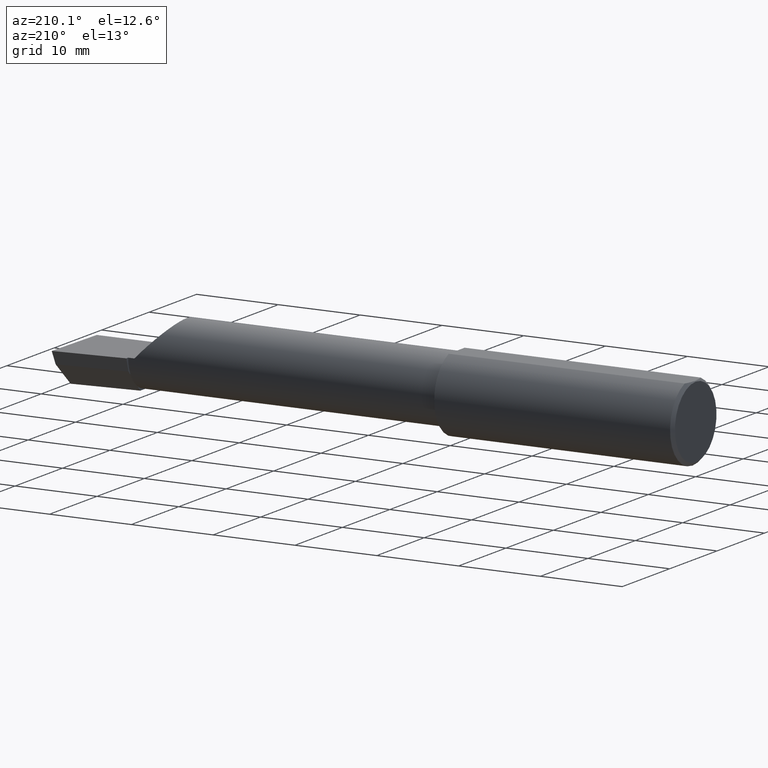
[diagram: clean part render]
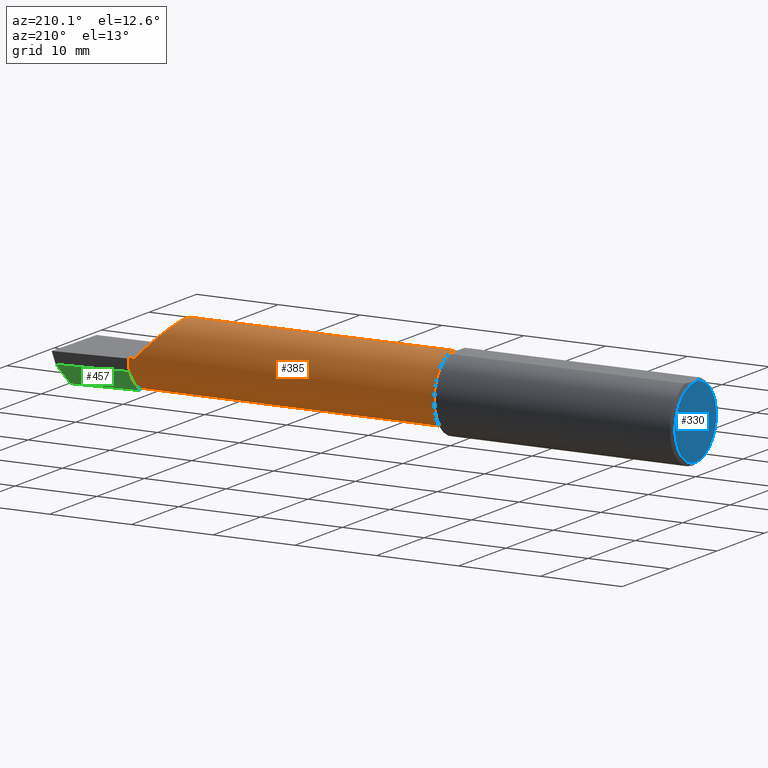
[diagram: same view with three faces highlighted in distinct colors, each labeled with its STEP entity id]
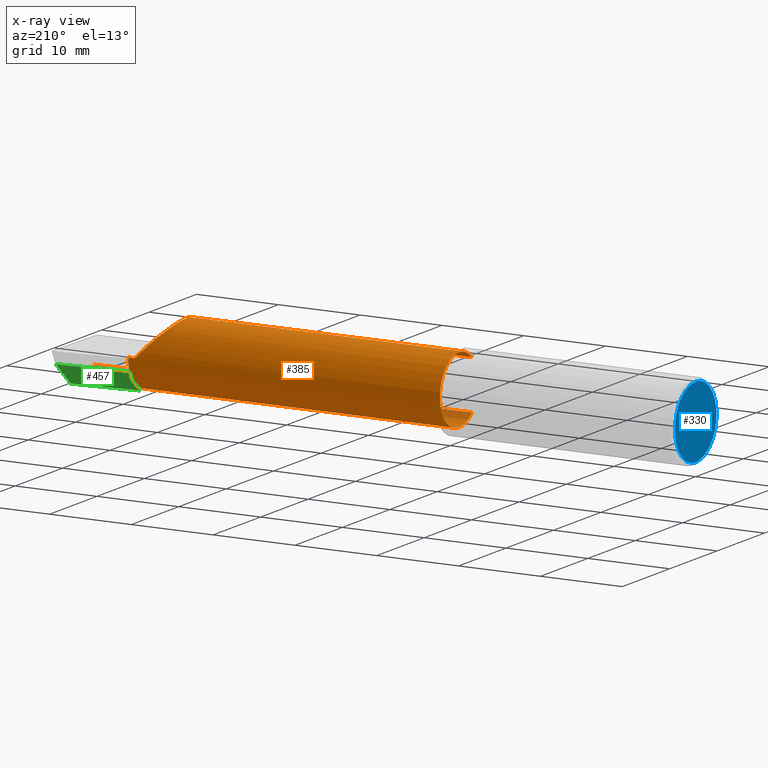
[diagram: x-ray of the same camera — body ghosted, the three highlighted faces saturated]
A machine part, auxiliary view with three faces highlighted in distinct colors.
The next image is the same camera in x-ray (body ghosted, the three faces saturated) — at least one of them is partly hidden behind the body in this view.
Their STEP definitions:

[orange] entity #385 — the highlighted cylindrical surface (partial cylindrical patch) has radius 4.0653 mm, axis along (-1, 0, -0).
#1 = CARTESIAN_POINT ( 'NONE',  ( 2.973833329693936545, -0.07789060880782658347, -0.1600499999999999146 ) ) ;
#2 = CIRCLE ( 'NONE', #478, 0.1600499999999999146 ) ;
#10 = CIRCLE ( 'NONE', #109, 0.1600500000000000533 ) ;
#14 = ORIENTED_EDGE ( 'NONE', *, *, #364, .F. ) ;
#20 = VECTOR ( 'NONE', #51, 39.37007874015748143 ) ;
#40 = CARTESIAN_POINT ( 'NONE',  ( 1.160000000000000142, -0.03739999999999999575, 0.000000000000000000 ) ) ;
#45 = ORIENTED_EDGE ( 'NONE', *, *, #56, .T. ) ;
#49 = ORIENTED_EDGE ( 'NONE', *, *, #199, .T. ) ;
#51 = DIRECTION ( 'NONE',  ( -1.000000000000000000, 5.691349986800548372E-18, -0.000000000000000000 ) ) ;
#56 = EDGE_CURVE ( 'NONE', #550, #360, #102, .T. ) ;
#62 = DIRECTION ( 'NONE',  ( -1.000000000000000000, 5.691349986800549142E-18, -0.000000000000000000 ) ) ;
#64 = AXIS2_PLACEMENT_3D ( 'NONE', #107, #62, #104 ) ;
#70 = CARTESIAN_POINT ( 'NONE',  ( 2.629999999999999893, 0.1226499999999998147, -1.592040838891560883E-17 ) ) ;
#78 = CARTESIAN_POINT ( 'NONE',  ( 2.659999999999999698, -0.03740000000000000269, 0.000000000000000000 ) ) ;
#84 = VERTEX_POINT ( 'NONE', #603 ) ;
#86 = LINE ( 'NONE', #552, #207 ) ;
#97 = LINE ( 'NONE', #289, #20 ) ;
#98 = VECTOR ( 'NONE', #414, 39.37007874015748143 ) ;
#99 = AXIS2_PLACEMENT_3D ( 'NONE', #40, #471, #192 ) ;
#102 =( BOUNDED_CURVE ( )  B_SPLINE_CURVE ( 3, ( #242, #119, #501, #70 ),
 .UNSPECIFIED., .F., .T. ) 
 B_SPLINE_CURVE_WITH_KNOTS ( ( 4, 4 ),
 ( 5.541729662751385455, 7.853981633974482790 ),
 .UNSPECIFIED. ) 
 CURVE ( )  GEOMETRIC_REPRESENTATION_ITEM ( )  RATIONAL_B_SPLINE_CURVE ( ( 1.000000000000000000, 0.6019254882129718709, 0.6019254882129718709, 1.000000000000000000 ) ) 
 REPRESENTATION_ITEM ( '' )  );
#104 = DIRECTION ( 'NONE',  ( -5.691349986800548372E-18, -1.000000000000000000, 0.000000000000000000 ) ) ;
#107 = CARTESIAN_POINT ( 'NONE',  ( 0.000000000000000000, -0.03739999999999998881, 0.000000000000000000 ) ) ;
#109 = AXIS2_PLACEMENT_3D ( 'NONE', #562, #464, #402 ) ;
#119 = CARTESIAN_POINT ( 'NONE',  ( 2.402393788885675008, -0.02584108761840274437, 0.2276062111143224709 ) ) ;
#126 =( BOUNDED_CURVE ( )  B_SPLINE_CURVE ( 3, ( #577, #372, #1, #332 ),
 .UNSPECIFIED., .F., .F. ) 
 B_SPLINE_CURVE_WITH_KNOTS ( ( 4, 4 ),
 ( 5.751779107031520510, 6.493234751459723064 ),
 .UNSPECIFIED. ) 
 CURVE ( )  GEOMETRIC_REPRESENTATION_ITEM ( )  RATIONAL_B_SPLINE_CURVE ( ( 1.000000000000000000, 0.9547092712975350226, 0.9547092712975350226, 1.000000000000000000 ) ) 
 REPRESENTATION_ITEM ( '' )  );
#135 = CARTESIAN_POINT ( 'NONE',  ( 2.977223734188810145, -0.1454917112299468074, -0.1180346748349050540 ) ) ;
#139 = EDGE_CURVE ( 'NONE', #425, #550, #86, .T. ) ;
#161 = VERTEX_POINT ( 'NONE', #171 ) ;
#166 = CARTESIAN_POINT ( 'NONE',  ( 1.160000000000000142, -0.1454917112299473902, 0.1180346748349042768 ) ) ;
#171 = CARTESIAN_POINT ( 'NONE',  ( 2.659999999999999698, -0.03740000000000000269, -0.1600499999999999701 ) ) ;
#192 = DIRECTION ( 'NONE',  ( 0.000000000000000000, -1.000000000000000000, 0.000000000000000000 ) ) ;
#199 = EDGE_CURVE ( 'NONE', #486, #161, #518, .T. ) ;
#207 = VECTOR ( 'NONE', #224, 39.37007874015748143 ) ;
#219 = ORIENTED_EDGE ( 'NONE', *, *, #139, .T. ) ;
#221 = DIRECTION ( 'NONE',  ( 0.000000000000000000, -1.000000000000000000, 0.000000000000000000 ) ) ;
#224 = DIRECTION ( 'NONE',  ( 1.000000000000000000, -5.691349986800549142E-18, 0.000000000000000000 ) ) ;
#225 = EDGE_CURVE ( 'NONE', #541, #594, #126, .T. ) ;
#234 = EDGE_CURVE ( 'NONE', #360, #383, #473, .T. ) ;
#242 = CARTESIAN_POINT ( 'NONE',  ( 2.511965325165093521, -0.1454917112299465853, 0.1180346748349052760 ) ) ;
#249 = ORIENTED_EDGE ( 'NONE', *, *, #538, .T. ) ;
#250 = CARTESIAN_POINT ( 'NONE',  ( 2.659999999999999698, 0.1226500000000000368, 3.563723795045366070E-16 ) ) ;
#254 = VECTOR ( 'NONE', #426, 39.37007874015748143 ) ;
#262 = ORIENTED_EDGE ( 'NONE', *, *, #347, .F. ) ;
#263 = CARTESIAN_POINT ( 'NONE',  ( 1.909999999999999920, -0.1454917112299468074, -0.1180346748349050540 ) ) ;
#268 = DIRECTION ( 'NONE',  ( -1.000000000000000000, 5.691349986800549142E-18, -0.000000000000000000 ) ) ;
#270 = EDGE_CURVE ( 'NONE', #425, #84, #400, .T. ) ;
#272 = LINE ( 'NONE', #263, #98 ) ;
#289 = CARTESIAN_POINT ( 'NONE',  ( 3.000000000000000444, -0.03740000000000000269, -0.1600499999999999701 ) ) ;
#293 = CARTESIAN_POINT ( 'NONE',  ( 2.629999999999999893, 0.1226499999999998147, -1.592040838891560883E-17 ) ) ;
#295 = FACE_OUTER_BOUND ( 'NONE', #316, .T. ) ;
#303 = ORIENTED_EDGE ( 'NONE', *, *, #234, .T. ) ;
#310 = CARTESIAN_POINT ( 'NONE',  ( 2.511965325165093521, -0.1454917112299465853, 0.1180346748349052760 ) ) ;
#316 = EDGE_LOOP ( 'NONE', ( #507, #249, #455, #219, #45, #303, #343, #14, #49, #262 ) ) ;
#332 = CARTESIAN_POINT ( 'NONE',  ( 2.974893613600466669, -0.03740000000000000269, -0.1600499999999999701 ) ) ;
#343 = ORIENTED_EDGE ( 'NONE', *, *, #614, .T. ) ;
#347 = EDGE_CURVE ( 'NONE', #594, #161, #97, .T. ) ;
#354 = CARTESIAN_POINT ( 'NONE',  ( 2.974893613600466669, -0.03740000000000000269, -0.1600499999999999701 ) ) ;
#360 = VERTEX_POINT ( 'NONE', #293 ) ;
#364 = EDGE_CURVE ( 'NONE', #486, #463, #2, .T. ) ;
#372 = CARTESIAN_POINT ( 'NONE',  ( 2.974646882977781015, -0.1156304438478839430, -0.1453804992321580114 ) ) ;
#381 = AXIS2_PLACEMENT_3D ( 'NONE', #78, #268, #221 ) ;
#383 = VERTEX_POINT ( 'NONE', #250 ) ;
#385 = ADVANCED_FACE ( 'NONE', ( #295 ), #490, .T. ) ;
#400 = CIRCLE ( 'NONE', #99, 0.1600499999999997758 ) ;
#402 = DIRECTION ( 'NONE',  ( 0.000000000000000000, -1.000000000000000000, 0.000000000000000000 ) ) ;
#414 = DIRECTION ( 'NONE',  ( -1.000000000000000000, 5.691349986800549142E-18, -0.000000000000000000 ) ) ;
#425 = VERTEX_POINT ( 'NONE', #166 ) ;
#426 = DIRECTION ( 'NONE',  ( 1.000000000000000000, -5.691349986800549142E-18, 0.000000000000000000 ) ) ;
#444 = CARTESIAN_POINT ( 'NONE',  ( 2.659999999999999698, 0.1028057716897400331, -0.07719031082256673504 ) ) ;
#455 = ORIENTED_EDGE ( 'NONE', *, *, #270, .F. ) ;
#463 = VERTEX_POINT ( 'NONE', #444 ) ;
#464 = DIRECTION ( 'NONE',  ( -1.000000000000000000, 5.691349986800549142E-18, -0.000000000000000000 ) ) ;
#471 = DIRECTION ( 'NONE',  ( -1.000000000000000000, 5.691349986800549142E-18, -0.000000000000000000 ) ) ;
#473 = LINE ( 'NONE', #620, #254 ) ;
#478 = AXIS2_PLACEMENT_3D ( 'NONE', #589, #493, #496 ) ;
#486 = VERTEX_POINT ( 'NONE', #487 ) ;
#487 = CARTESIAN_POINT ( 'NONE',  ( 2.659999999999999698, 0.04400172171466199683, -0.1378033461200732224 ) ) ;
#490 = CYLINDRICAL_SURFACE ( 'NONE', #64, 0.1600499999999999146 ) ;
#493 = DIRECTION ( 'NONE',  ( 1.000000000000000000, -5.691349986800549142E-18, 0.000000000000000000 ) ) ;
#496 = DIRECTION ( 'NONE',  ( 0.000000000000000000, -1.000000000000000000, -1.776356839400250465E-15 ) ) ;
#501 = CARTESIAN_POINT ( 'NONE',  ( 2.467758842172327771, 0.1226499999999999119, 0.1622411578276702349 ) ) ;
#507 = ORIENTED_EDGE ( 'NONE', *, *, #225, .F. ) ;
#518 = CIRCLE ( 'NONE', #381, 0.1600500000000000533 ) ;
#538 = EDGE_CURVE ( 'NONE', #541, #84, #272, .T. ) ;
#541 = VERTEX_POINT ( 'NONE', #135 ) ;
#550 = VERTEX_POINT ( 'NONE', #310 ) ;
#552 = CARTESIAN_POINT ( 'NONE',  ( 1.909999999999999920, -0.1454917112299468074, 0.1180346748349050540 ) ) ;
#562 = CARTESIAN_POINT ( 'NONE',  ( 2.659999999999999698, -0.03740000000000000269, 0.000000000000000000 ) ) ;
#577 = CARTESIAN_POINT ( 'NONE',  ( 2.977223734188810145, -0.1454917112299468074, -0.1180346748349050540 ) ) ;
#589 = CARTESIAN_POINT ( 'NONE',  ( 2.659999999999999698, -0.03740000000000000269, 0.000000000000000000 ) ) ;
#594 = VERTEX_POINT ( 'NONE', #354 ) ;
#603 = CARTESIAN_POINT ( 'NONE',  ( 1.160000000000000142, -0.1454917112299473902, -0.1180346748349042768 ) ) ;
#614 = EDGE_CURVE ( 'NONE', #383, #463, #10, .T. ) ;
#620 = CARTESIAN_POINT ( 'NONE',  ( 9.109005653874777379E-19, 0.1226499999999998841, 3.563723795045361633E-16 ) ) ;

[blue] entity #330 — the highlighted planar face has unit normal (1, 0, 0).
#28 = ORIENTED_EDGE ( 'NONE', *, *, #525, .T. ) ;
#35 = AXIS2_PLACEMENT_3D ( 'NONE', #396, #112, #298 ) ;
#75 = CIRCLE ( 'NONE', #423, 0.1723499999999996424 ) ;
#112 = DIRECTION ( 'NONE',  ( -1.000000000000000000, -0.000000000000000000, -0.000000000000000000 ) ) ;
#129 = ORIENTED_EDGE ( 'NONE', *, *, #403, .T. ) ;
#149 = FACE_OUTER_BOUND ( 'NONE', #544, .T. ) ;
#153 = AXIS2_PLACEMENT_3D ( 'NONE', #429, #335, #528 ) ;
#257 = CARTESIAN_POINT ( 'NONE',  ( 0.000000000000000000, 0.000000000000000000, -0.1723499999999996424 ) ) ;
#298 = DIRECTION ( 'NONE',  ( 0.000000000000000000, 0.000000000000000000, 1.000000000000000000 ) ) ;
#307 = CARTESIAN_POINT ( 'NONE',  ( 0.000000000000000000, 0.000000000000000000, 0.000000000000000000 ) ) ;
#330 = ADVANCED_FACE ( 'NONE', ( #149 ), #422, .F. ) ;
#335 = DIRECTION ( 'NONE',  ( 1.000000000000000000, 0.000000000000000000, 0.000000000000000000 ) ) ;
#358 = DIRECTION ( 'NONE',  ( -1.000000000000000000, -0.000000000000000000, -0.000000000000000000 ) ) ;
#396 = CARTESIAN_POINT ( 'NONE',  ( 0.000000000000000000, 0.000000000000000000, 0.000000000000000000 ) ) ;
#403 = EDGE_CURVE ( 'NONE', #431, #557, #488, .T. ) ;
#422 = PLANE ( 'NONE',  #153 ) ;
#423 = AXIS2_PLACEMENT_3D ( 'NONE', #307, #358, #612 ) ;
#429 = CARTESIAN_POINT ( 'NONE',  ( 0.000000000000000000, 0.000000000000000000, 0.000000000000000000 ) ) ;
#431 = VERTEX_POINT ( 'NONE', #257 ) ;
#488 = CIRCLE ( 'NONE', #35, 0.1723499999999996424 ) ;
#513 = CARTESIAN_POINT ( 'NONE',  ( 0.000000000000000000, 2.202527268266512578E-17, 0.1723499999999996424 ) ) ;
#525 = EDGE_CURVE ( 'NONE', #557, #431, #75, .T. ) ;
#528 = DIRECTION ( 'NONE',  ( 0.000000000000000000, 0.000000000000000000, -1.000000000000000000 ) ) ;
#544 = EDGE_LOOP ( 'NONE', ( #129, #28 ) ) ;
#557 = VERTEX_POINT ( 'NONE', #513 ) ;
#612 = DIRECTION ( 'NONE',  ( 0.000000000000000000, 0.000000000000000000, 1.000000000000000000 ) ) ;

[green] entity #457 — the highlighted planar face has unit normal (-0.0689, 0.716, -0.6947).
#6 = CARTESIAN_POINT ( 'NONE',  ( 2.992127980275564259, 0.1514633278254527426, -0.06000000000000001166 ) ) ;
#9 = CARTESIAN_POINT ( 'NONE',  ( 2.991169618080469661, 0.05430702260361124772, -0.1600499999999999701 ) ) ;
#23 = CARTESIAN_POINT ( 'NONE',  ( 2.992483720199184294, 0.1538199878950239352, -0.05760614975163617230 ) ) ;
#32 = CARTESIAN_POINT ( 'NONE',  ( 2.659999999999999698, 0.02241901528670498314, -0.1600499999999999701 ) ) ;
#66 = ORIENTED_EDGE ( 'NONE', *, *, #190, .F. ) ;
#81 = LINE ( 'NONE', #365, #546 ) ;
#88 = EDGE_CURVE ( 'NONE', #395, #452, #462, .T. ) ;
#114 = CARTESIAN_POINT ( 'NONE',  ( 3.011712141217648409, 0.1533490680423131858, -0.06000000000000001166 ) ) ;
#128 = VECTOR ( 'NONE', #592, 39.37007874015748854 ) ;
#133 = VECTOR ( 'NONE', #246, 39.37007874015748854 ) ;
#162 = DIRECTION ( 'NONE',  ( 0.000000000000000000, 0.6963153109074925462, 0.7177360153954948085 ) ) ;
#165 = VERTEX_POINT ( 'NONE', #318 ) ;
#189 = CARTESIAN_POINT ( 'NONE',  ( 2.659999999999999698, 0.1010446066476775734, -0.07900565447499385829 ) ) ;
#190 = EDGE_CURVE ( 'NONE', #486, #613, #81, .T. ) ;
#203 = PLANE ( 'NONE',  #379 ) ;
#210 = DIRECTION ( 'NONE',  ( -0.06894566448119621160, 0.7160281025913034503, -0.6946583704589934793 ) ) ;
#235 = LINE ( 'NONE', #189, #133 ) ;
#246 = DIRECTION ( 'NONE',  ( -3.962974135542378101E-18, -0.6963153109074925462, -0.7177360153954946975 ) ) ;
#251 = ORIENTED_EDGE ( 'NONE', *, *, #485, .F. ) ;
#275 = VECTOR ( 'NONE', #545, 39.37007874015748854 ) ;
#291 = EDGE_CURVE ( 'NONE', #463, #486, #235, .T. ) ;
#302 = VECTOR ( 'NONE', #556, 39.37007874015748854 ) ;
#306 = EDGE_LOOP ( 'NONE', ( #309, #621, #66, #401, #336, #251 ) ) ;
#309 = ORIENTED_EDGE ( 'NONE', *, *, #88, .F. ) ;
#318 = CARTESIAN_POINT ( 'NONE',  ( 2.659999999999999698, 0.1194830407249523607, -0.06000000000000001166 ) ) ;
#336 = ORIENTED_EDGE ( 'NONE', *, *, #375, .F. ) ;
#342 = FACE_OUTER_BOUND ( 'NONE', #306, .T. ) ;
#344 = LINE ( 'NONE', #114, #275 ) ;
#365 = CARTESIAN_POINT ( 'NONE',  ( 2.659999999999999698, 0.1010446066476775734, -0.07900565447499385829 ) ) ;
#375 = EDGE_CURVE ( 'NONE', #165, #463, #390, .T. ) ;
#379 = AXIS2_PLACEMENT_3D ( 'NONE', #587, #210, #162 ) ;
#390 = LINE ( 'NONE', #539, #128 ) ;
#391 = VECTOR ( 'NONE', #447, 39.37007874015748854 ) ;
#395 = VERTEX_POINT ( 'NONE', #492 ) ;
#401 = ORIENTED_EDGE ( 'NONE', *, *, #291, .F. ) ;
#439 = EDGE_CURVE ( 'NONE', #395, #613, #542, .T. ) ;
#444 = CARTESIAN_POINT ( 'NONE',  ( 2.659999999999999698, 0.1028057716897400331, -0.07719031082256673504 ) ) ;
#447 = DIRECTION ( 'NONE',  ( -0.9953961983671800740, -0.09584575252021028391, 0.000000000000000000 ) ) ;
#452 = VERTEX_POINT ( 'NONE', #6 ) ;
#457 = ADVANCED_FACE ( 'NONE', ( #342 ), #203, .T. ) ;
#462 = LINE ( 'NONE', #23, #302 ) ;
#463 = VERTEX_POINT ( 'NONE', #444 ) ;
#485 = EDGE_CURVE ( 'NONE', #452, #165, #344, .T. ) ;
#486 = VERTEX_POINT ( 'NONE', #487 ) ;
#487 = CARTESIAN_POINT ( 'NONE',  ( 2.659999999999999698, 0.04400172171466199683, -0.1378033461200732224 ) ) ;
#492 = CARTESIAN_POINT ( 'NONE',  ( 2.977259974483423832, 0.05296767626088492303, -0.1600499999999999701 ) ) ;
#539 = CARTESIAN_POINT ( 'NONE',  ( 2.659999999999999698, 0.1010446066476775734, -0.07900565447499385829 ) ) ;
#542 = LINE ( 'NONE', #9, #391 ) ;
#545 = DIRECTION ( 'NONE',  ( -0.9953961983671800740, -0.09584575252021031166, 0.000000000000000000 ) ) ;
#546 = VECTOR ( 'NONE', #600, 39.37007874015748854 ) ;
#556 = DIRECTION ( 'NONE',  ( 0.1053106618241840126, 0.6976485211320170299, 0.7086580314005209713 ) ) ;
#587 = CARTESIAN_POINT ( 'NONE',  ( 3.011712141217648409, 0.1533490680423131858, -0.06000000000000001166 ) ) ;
#592 = DIRECTION ( 'NONE',  ( -3.962974135542378101E-18, -0.6963153109074925462, -0.7177360153954946975 ) ) ;
#600 = DIRECTION ( 'NONE',  ( -3.962974135542378101E-18, -0.6963153109074925462, -0.7177360153954946975 ) ) ;
#613 = VERTEX_POINT ( 'NONE', #32 ) ;
#621 = ORIENTED_EDGE ( 'NONE', *, *, #439, .T. ) ;